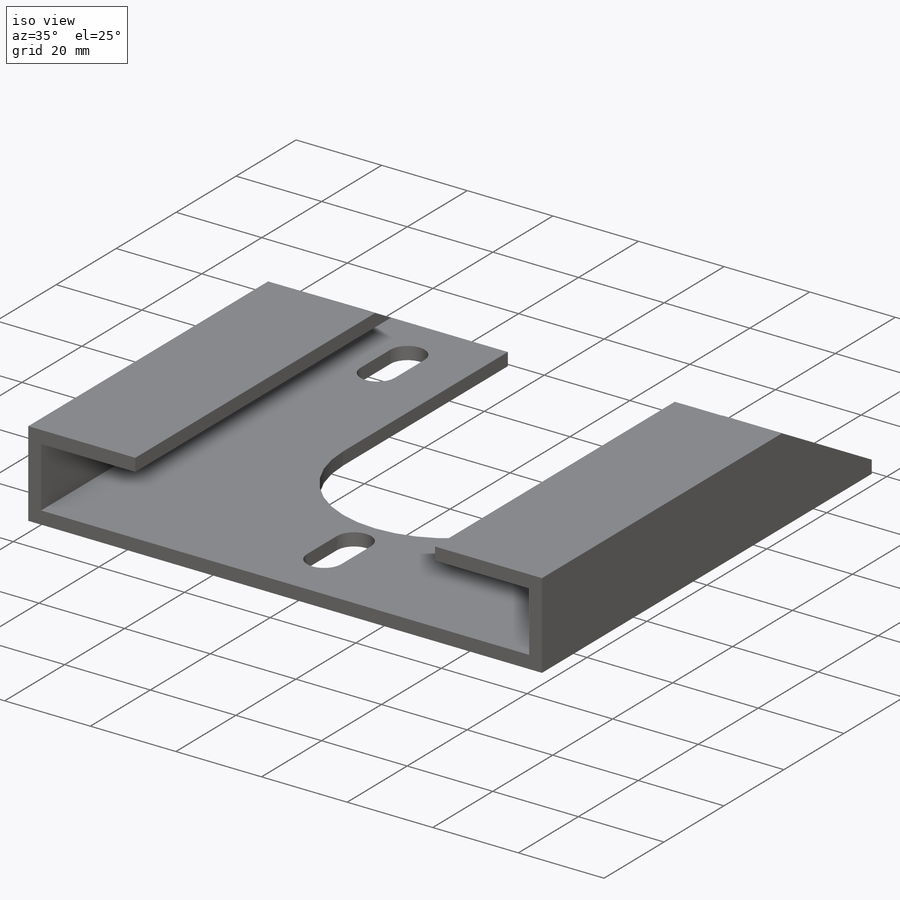
[diagram: iso view]
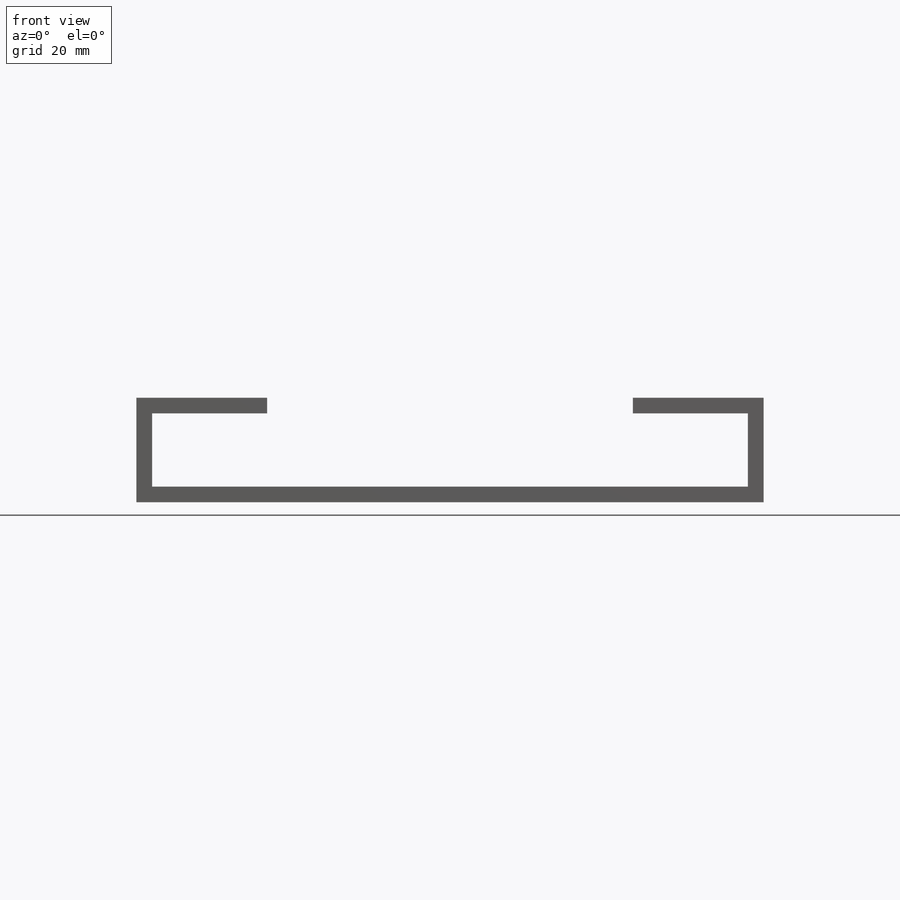
[diagram: front view]
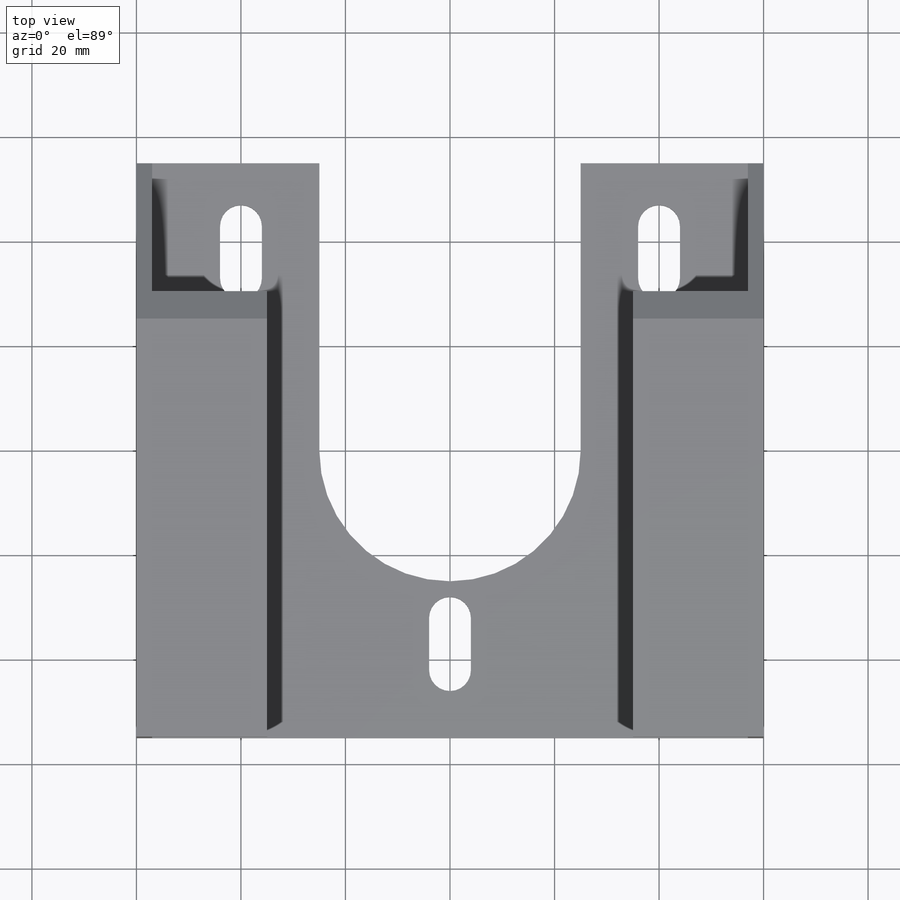
[diagram: top view]
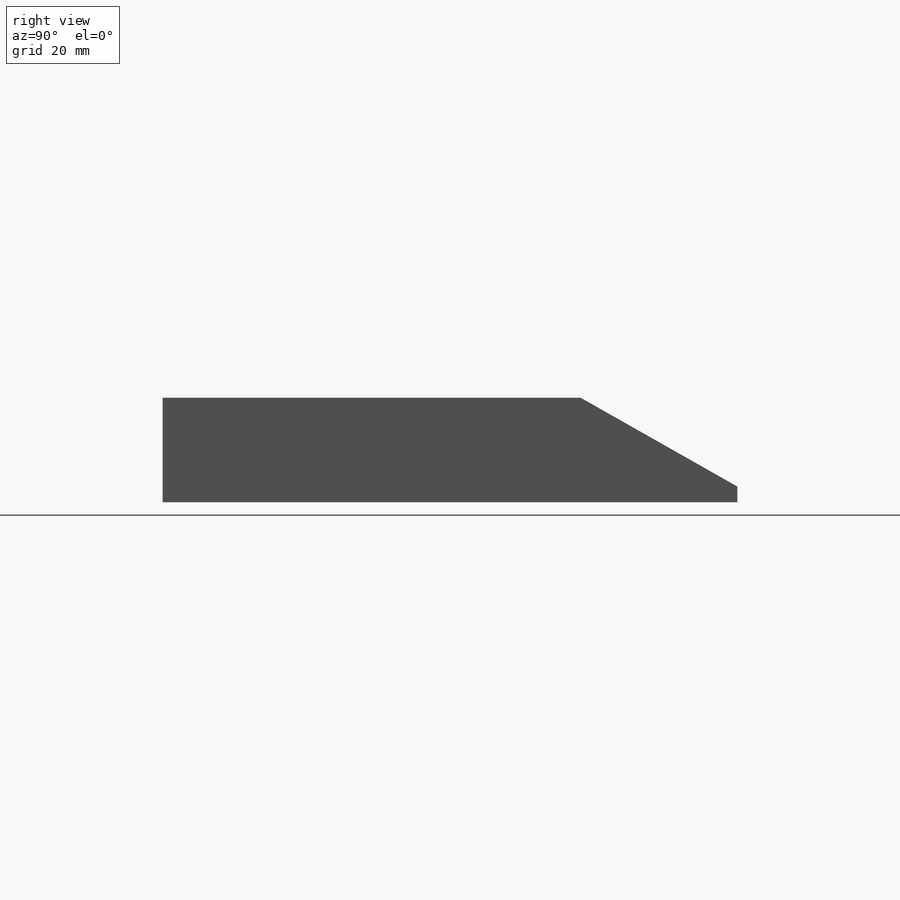
[diagram: right view]
SOLIDWORKS PART (.sldprt)
format: sldprt  version: not decoded by parser v0  size: 262,656 bytes
history: native  units: mm
features: sketch x7, extrude x3, cut_extrude x3, mirror x2, material x1, plane x1 (+13 scaffold rows collapsed)
feature tree (30):
  scaffold x13  (default folders/planes/origin — collapsed)
  material  "Material <not specified>"
  sketch  "Sketch1"  dims[c1.D5=50.0mm c1.D1=~105.682557mm c1.D2=~83.717162mm c2.D1=110.0mm c2.D2=120.0mm c2.D3=110.0mm c2.D6=~33.257515mm c3.D3=3.0mm c3.D4=3.0mm]
  extrude  "Boss-Extrude1"  Depth=3mm
  extrude  "Boss-Extrude2"  [1 undecoded]
  sketch  "Sketch1<3>"  dims[D1=20.0mm]
  sketch  "Sketch4"  dims[D2=110.0mm D1=3.0mm]
  extrude  "Boss-Extrude3"  Depth=22mm
  mirror  "Mirror1"
  sketch  "Sketch5"  dims[D1=80.0mm D2=22.0mm]
  plane  "Plane1"
  sketch  "Sketch9"  dims[c1.D1=~107.042869mm c1.D2=~302.971917mm c2.D1=~63.565026mm c2.D2=~153.774266mm]
  cut_extrude  "Cut-Extrude1"  [1 undecoded]
  sketch  "Sketch10"  dims[D1=8.0mm D2=18.0mm D3=15.0mm D4=32.0mm]
  cut_extrude  "Cut-Extrude2"  Depth=22mm
  mirror  "Mirror2"
  sketch  "Sketch11"  dims[D1=18.0mm D2=8.0mm D3=3.0mm]
  cut_extrude  "Cut-Extrude3"  Depth=22mm
decode coverage: 11 of 15 modeling features carry decoded parameters
note: ~ marks probable driven/reference dimensions
note: 2 parameter values undecoded
note: suppression state not decoded; provenance and decode notes live in map.json
